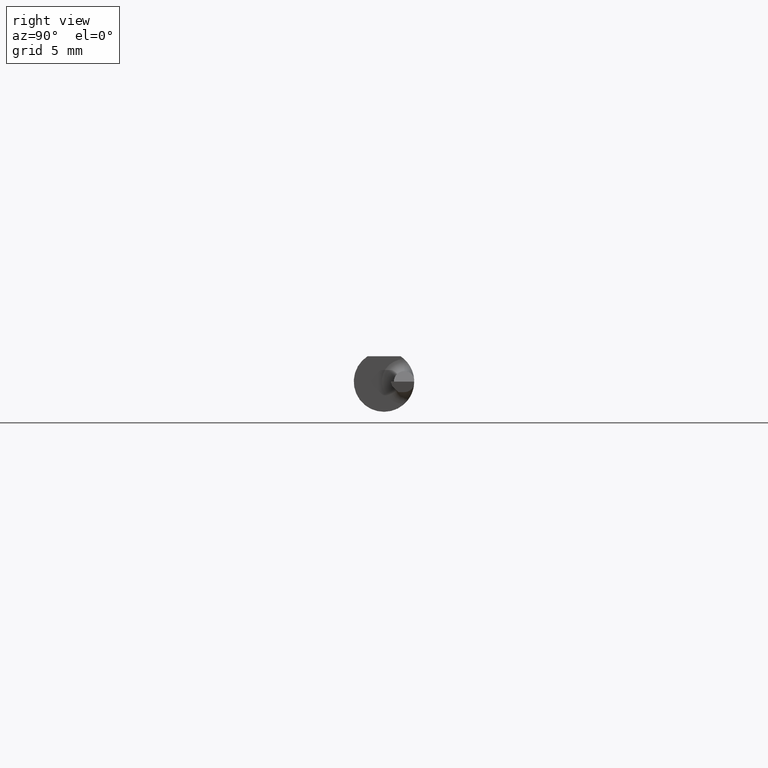
[diagram: clean part render]
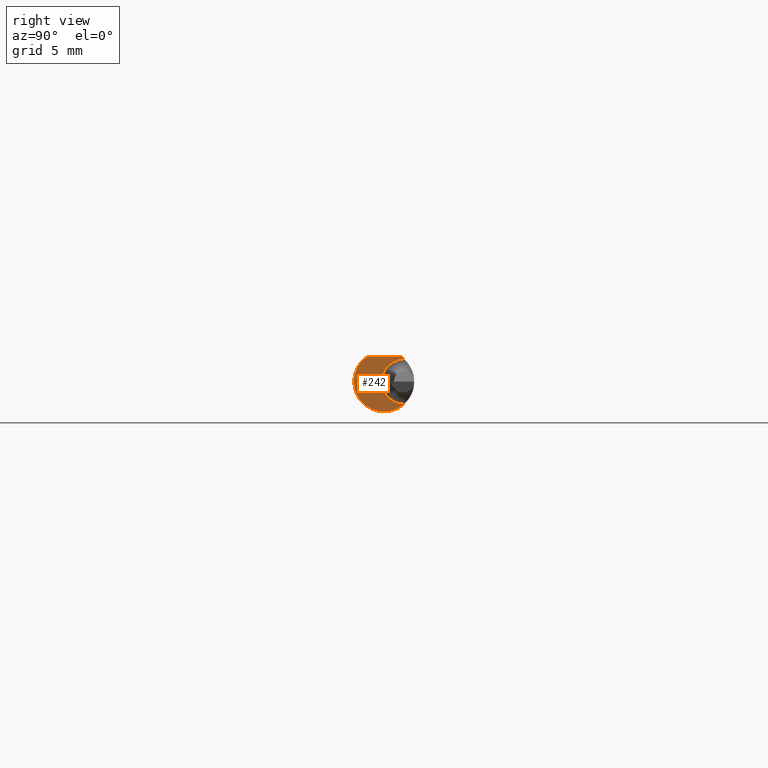
[diagram: same view with one face highlighted and labeled with its STEP entity id]
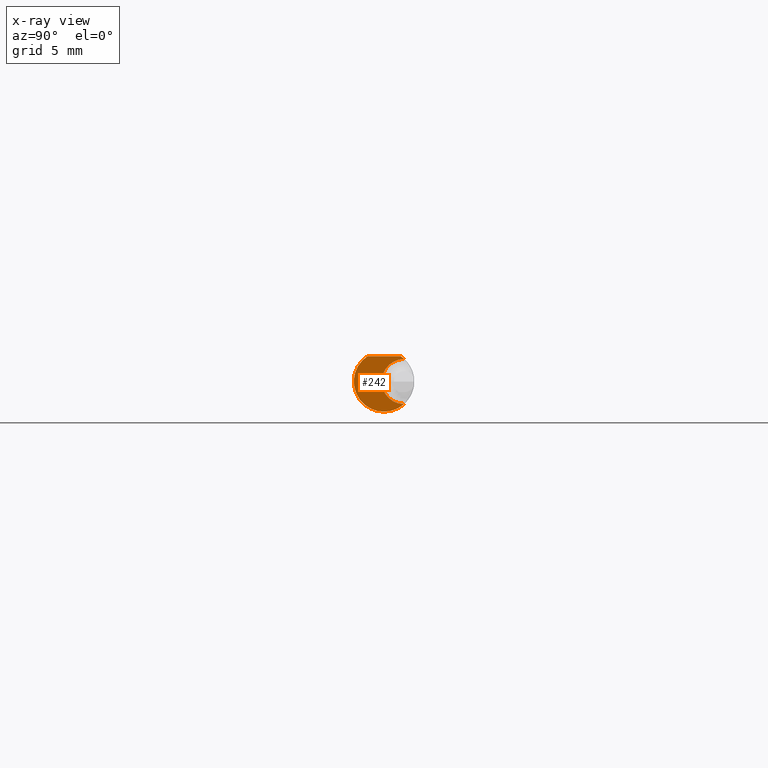
[diagram: x-ray of the same camera — body ghosted, the highlighted face saturated]
A machine part, right view. The second image highlights one B-rep face of the part: STEP entity #242.
The next image is the same camera in x-ray: the body ghosted, the highlighted face saturated — about 0% of this face is hidden behind the body in this view.
In plain terms, the highlighted planar face has unit normal (-1, 0, -0).
Its self-contained STEP definition (entity closure, byte-faithful):
#2 = CIRCLE ( 'NONE', #352, 0.06235000000000000264 ) ;
#33 = FACE_OUTER_BOUND ( 'NONE', #472, .T. ) ;
#96 = VERTEX_POINT ( 'NONE', #371 ) ;
#105 = DIRECTION ( 'NONE',  ( 0.000000000000000000, 0.000000000000000000, 1.000000000000000000 ) ) ;
#212 = ORIENTED_EDGE ( 'NONE', *, *, #652, .T. ) ;
#215 = EDGE_CURVE ( 'NONE', #96, #297, #653, .T. ) ;
#221 = VERTEX_POINT ( 'NONE', #455 ) ;
#239 = CARTESIAN_POINT ( 'NONE',  ( 1.160000000000000142, -0.004650000000000042120, 0.000000000000000000 ) ) ;
#242 = ADVANCED_FACE ( 'NONE', ( #33 ), #612, .F. ) ;
#252 = CARTESIAN_POINT ( 'NONE',  ( 1.160000000000000142, 0.000000000000000000, 0.000000000000000000 ) ) ;
#258 = CARTESIAN_POINT ( 'NONE',  ( 1.160000000000000142, -0.03386738844380016850, 0.05235000000000000070 ) ) ;
#267 = DIRECTION ( 'NONE',  ( -1.000000000000000000, -0.000000000000000000, -0.000000000000000000 ) ) ;
#292 = CARTESIAN_POINT ( 'NONE',  ( 1.160000000000000142, 0.04137261904761900533, 0.04664578108618819968 ) ) ;
#297 = VERTEX_POINT ( 'NONE', #292 ) ;
#300 = DIRECTION ( 'NONE',  ( 0.000000000000000000, 0.000000000000000000, 1.000000000000000000 ) ) ;
#304 = CARTESIAN_POINT ( 'NONE',  ( 1.160000000000000142, 0.000000000000000000, 0.000000000000000000 ) ) ;
#320 = CIRCLE ( 'NONE', #373, 0.04665000000000004560 ) ;
#326 = CARTESIAN_POINT ( 'NONE',  ( 1.160000000000000142, 0.04200000000000000955, 0.000000000000000000 ) ) ;
#352 = AXIS2_PLACEMENT_3D ( 'NONE', #304, #461, #105 ) ;
#370 = VECTOR ( 'NONE', #623, 39.37007874015748143 ) ;
#371 = CARTESIAN_POINT ( 'NONE',  ( 1.160000000000000142, 0.03386738844375224156, 0.05235000000000000070 ) ) ;
#372 = ORIENTED_EDGE ( 'NONE', *, *, #411, .F. ) ;
#373 = AXIS2_PLACEMENT_3D ( 'NONE', #326, #267, #375 ) ;
#375 = DIRECTION ( 'NONE',  ( 0.000000000000000000, 0.000000000000000000, 1.000000000000000000 ) ) ;
#398 = DIRECTION ( 'NONE',  ( -1.000000000000000000, 0.000000000000000000, -0.000000000000000000 ) ) ;
#406 = EDGE_CURVE ( 'NONE', #221, #591, #2, .T. ) ;
#407 = AXIS2_PLACEMENT_3D ( 'NONE', #239, #398, #500 ) ;
#411 = EDGE_CURVE ( 'NONE', #591, #96, #458, .T. ) ;
#415 = ORIENTED_EDGE ( 'NONE', *, *, #406, .F. ) ;
#445 = DIRECTION ( 'NONE',  ( -1.000000000000000000, -0.000000000000000000, -0.000000000000000000 ) ) ;
#455 = CARTESIAN_POINT ( 'NONE',  ( 1.160000000000000142, 0.04137261904761900533, -0.04664578108618819968 ) ) ;
#458 = LINE ( 'NONE', #684, #370 ) ;
#461 = DIRECTION ( 'NONE',  ( -1.000000000000000000, -0.000000000000000000, -0.000000000000000000 ) ) ;
#472 = EDGE_LOOP ( 'NONE', ( #212, #615, #372, #415 ) ) ;
#479 = AXIS2_PLACEMENT_3D ( 'NONE', #252, #445, #300 ) ;
#500 = DIRECTION ( 'NONE',  ( -0.000000000000000000, 0.000000000000000000, 1.000000000000000000 ) ) ;
#591 = VERTEX_POINT ( 'NONE', #258 ) ;
#612 = PLANE ( 'NONE',  #407 ) ;
#615 = ORIENTED_EDGE ( 'NONE', *, *, #215, .F. ) ;
#623 = DIRECTION ( 'NONE',  ( 0.000000000000000000, 1.000000000000000000, -7.598598113218357399E-17 ) ) ;
#652 = EDGE_CURVE ( 'NONE', #221, #297, #320, .T. ) ;
#653 = CIRCLE ( 'NONE', #479, 0.06235000000000000264 ) ;
#684 = CARTESIAN_POINT ( 'NONE',  ( 1.160000000000000142, 0.1123499999999999915, 0.05234999999999998682 ) ) ;